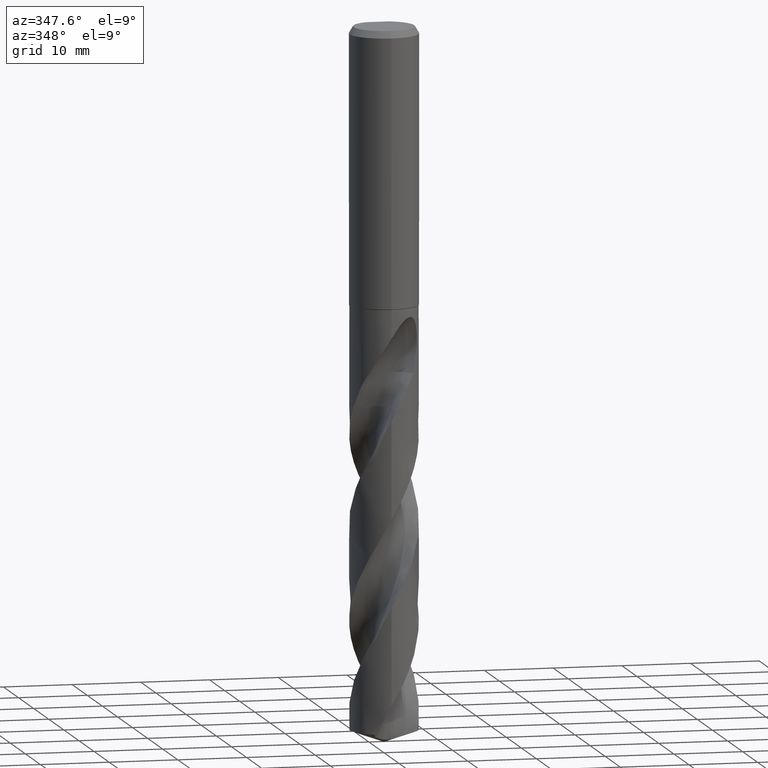
[diagram: clean part render]
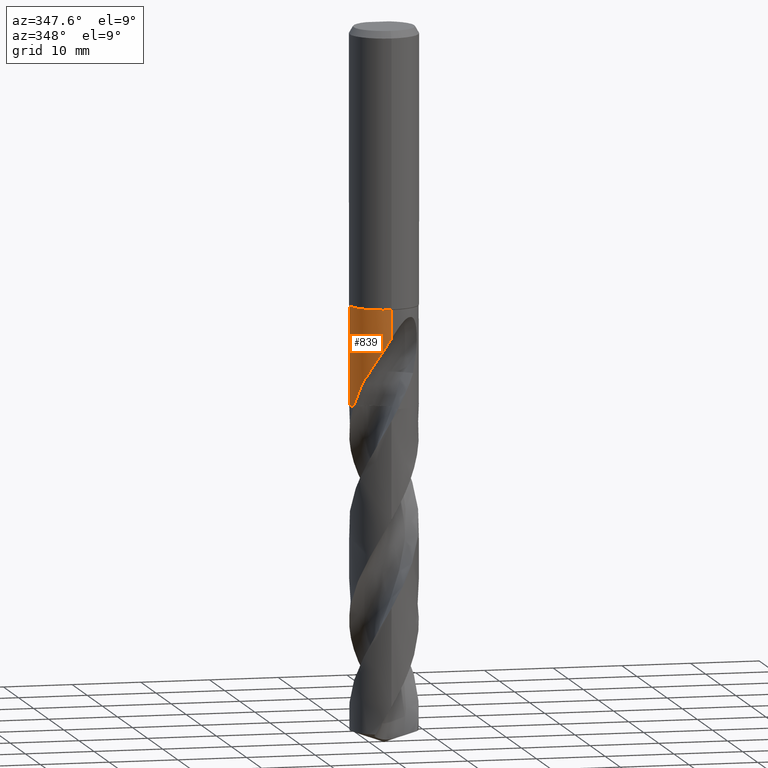
[diagram: same view with one face highlighted and labeled with its STEP entity id]
A machine part, auxiliary view. The second image highlights one B-rep face of the part: STEP entity #839.
In plain terms, the highlighted cylindrical surface (edge-blend (fillet) strip) has radius 4.95 mm, axis along (-0, -0, 1).
Its self-contained STEP definition (entity closure, byte-faithful):
#359=EDGE_CURVE('',#521,#843,#936,.T.);
#361=EDGE_CURVE('',#669,#521,#938,.T.);
#363=EDGE_CURVE('',#627,#669,#940,.T.);
#377=VERTEX_POINT('',#955);
#437=VERTEX_POINT('',#1017);
#497=EDGE_CURVE('',#437,#507,#1080,.T.);
#507=VERTEX_POINT('',#1092);
#521=VERTEX_POINT('',#1106);
#541=EDGE_CURVE('',#747,#843,#1128,.T.);
#627=VERTEX_POINT('',#1225);
#645=EDGE_CURVE('',#747,#377,#1246,.T.);
#651=VERTEX_POINT('',#1253);
#669=VERTEX_POINT('',#1272);
#681=EDGE_CURVE('',#377,#651,#1285,.T.);
#747=VERTEX_POINT('',#1357);
#753=EDGE_CURVE('',#507,#627,#1363,.T.);
#829=EDGE_CURVE('',#651,#437,#1448,.T.);
#839=ADVANCED_FACE('',(#1459),#1460,.T.);
#843=VERTEX_POINT('',#1464);
#936=B_SPLINE_CURVE_WITH_KNOTS('',3,(#2507,#2508,#2509,#2510,#2511,#2512,#2513,#2514,#2515,#2516),.UNSPECIFIED.,.F.,.F.,(4,2,2,2,4),(0.0,1.40330162949224,2.61879485327004,3.29349505720181,5.31288909154133),.UNSPECIFIED.);
#938=B_SPLINE_CURVE_WITH_KNOTS('',3,(#2519,#2520,#2521,#2522),.UNSPECIFIED.,.F.,.F.,(4,4),(0.0,2.84486350772969),.UNSPECIFIED.);
#940=B_SPLINE_CURVE_WITH_KNOTS('',3,(#2525,#2526,#2527,#2528,#2529,#2530,#2531,#2532,#2533,#2534,#2535,#2536,#2537,#2538,#2539,#2540,#2541,#2542,#2543,#2544,#2545,#2546,#2547,#2548,#2549,#2550,#2551,#2552,#2553,#2554),.UNSPECIFIED.,.F.,.F.,(4,2,2,2,2,2,2,2,2,2,2,2,2,2,4),(0.0,2.42522133658939,3.74944915145808,4.94886623933626,6.34230013498849,8.01613327898156,9.46687294784059,10.1242987846261,10.6047968681304,11.0594885630532,11.6362920786605,12.4801790119403,13.679863513429,14.4649272720571,15.2899759406894),.UNSPECIFIED.);
#955=CARTESIAN_POINT('',(-3.15421182156628,-3.814898135559,-49.4894));
#1017=CARTESIAN_POINT('',(6.06180145142077E-016,-4.95,-40.0866025403785));
#1080=CIRCLE('',#4504,4.95);
#1092=CARTESIAN_POINT('',(0.0,4.95,-40.0866025403784));
#1106=CARTESIAN_POINT('',(-3.44063284594782,3.55872809011661,-49.4894));
#1128=CIRCLE('',#4655,4.95);
#1225=CARTESIAN_POINT('',(-1.46402112573838E-012,4.95,-44.2276631421778));
#1246=B_SPLINE_CURVE_WITH_KNOTS('',3,(#6331,#6332,#6333,#6334,#6335,#6336,#6337,#6338,#6339,#6340,#6341,#6342),.UNSPECIFIED.,.F.,.F.,(4,2,2,2,2,4),(0.0,1.42459174307547,2.33315341626925,3.14287996455602,4.19952065614753,7.08593611022931),.UNSPECIFIED.);
#1253=CARTESIAN_POINT('',(1.4669077056024E-012,-4.95,-44.2276631421778));
#1272=CARTESIAN_POINT('',(-4.02752870835985,2.87776171760923,-46.7788778711761));
#1285=B_SPLINE_CURVE_WITH_KNOTS('',3,(#6545,#6546,#6547,#6548,#6549,#6550,#6551,#6552,#6553,#6554,#6555,#6556,#6557,#6558,#6559,#6560,#6561,#6562,#6563,#6564,#6565,#6566,#6567,#6568,#6569,#6570,#6571,#6572,#6573,#6574),.UNSPECIFIED.,.F.,.F.,(4,2,2,2,2,2,2,2,2,2,2,2,2,2,4),(0.0,2.42522133658941,3.74944915145817,4.94886623933625,6.34230013498769,8.01613327897986,9.46687294783818,10.1242987846232,10.6047968681272,11.0594885630496,11.6362920786569,12.4801790119349,13.679863513419,14.464927272044,15.2899759406732),.UNSPECIFIED.);
#1357=CARTESIAN_POINT('',(-4.75500296771918,-1.37566230484877,-54.4));
#1363=LINE('',#7467,#7468);
#1448=LINE('',#8948,#8949);
#1459=FACE_OUTER_BOUND('',#8972,.T.);
#1460=CYLINDRICAL_SURFACE('',#8973,4.95);
#1464=CARTESIAN_POINT('',(-0.969686742396266,4.85409184313821,-54.4));
#2507=CARTESIAN_POINT('',(-3.44063284594782,3.55872809011661,-49.4894));
#2508=CARTESIAN_POINT('',(-3.28096544860085,3.71309697636692,-49.9010828048087));
#2509=CARTESIAN_POINT('',(-3.11000561110032,3.85867884008809,-50.3018179626087));
#2510=CARTESIAN_POINT('',(-2.74343939788603,4.12557059020164,-51.0711468243199));
#2511=CARTESIAN_POINT('',(-2.56499005662913,4.23957045023099,-51.424640564952));
#2512=CARTESIAN_POINT('',(-2.25768657513231,4.40692089975931,-52.0300546925235));
#2513=CARTESIAN_POINT('',(-2.14595393397147,4.46238602922515,-52.2472018037267));
#2514=CARTESIAN_POINT('',(-1.69255483101319,4.66654862672615,-53.1121758678117));
#2515=CARTESIAN_POINT('',(-1.33628747464521,4.78085716169783,-53.753075630111));
#2516=CARTESIAN_POINT('',(-0.969686742396252,4.85409184313821,-54.4));
#2519=CARTESIAN_POINT('',(-4.02752870841248,2.8777617175356,-46.778877871205));
#2520=CARTESIAN_POINT('',(-3.86794478837606,3.10110502474244,-47.6865675534899));
#2521=CARTESIAN_POINT('',(-3.67560350998939,3.33155485179564,-48.5996588595722));
#2522=CARTESIAN_POINT('',(-3.44063284594782,3.55872809011661,-49.4894));
#2525=CARTESIAN_POINT('',(3.15421182156628,3.814898135559,-49.4894));
#2526=CARTESIAN_POINT('',(2.8276920014912,4.0848693483829,-48.8009071457202));
#2527=CARTESIAN_POINT('',(2.45226826174791,4.32485498631928,-48.1590095711176));
#2528=CARTESIAN_POINT('',(1.79764121999742,4.61900775837611,-47.0866758738501));
#2529=CARTESIAN_POINT('',(1.56207562164077,4.70362440821448,-46.7093927774656));
#2530=CARTESIAN_POINT('',(1.10605040886256,4.83008689745465,-45.9790706206081));
#2531=CARTESIAN_POINT('',(0.88762692870435,4.87476579277415,-45.6294356806956));
#2532=CARTESIAN_POINT('',(0.414832128174307,4.93924843670553,-44.8758796771763));
#2533=CARTESIAN_POINT('',(0.156511543951818,4.95438716355786,-44.466060145349));
#2534=CARTESIAN_POINT('',(-0.417152449289362,4.94232025588948,-43.5893208093688));
#2535=CARTESIAN_POINT('',(-0.757277279494261,4.90499779900941,-43.0904465141897));
#2536=CARTESIAN_POINT('',(-1.4131639952485,4.75427202570061,-42.2678372951499));
#2537=CARTESIAN_POINT('',(-1.77603978824769,4.63943807536159,-41.8664362968636));
#2538=CARTESIAN_POINT('',(-2.32524882669984,4.37400306711188,-41.4905645527586));
#2539=CARTESIAN_POINT('',(-2.50704073035636,4.27379520392938,-41.3976715698567));
#2540=CARTESIAN_POINT('',(-2.82558192301699,4.06746476166216,-41.3263131692527));
#2541=CARTESIAN_POINT('',(-2.95623354614982,3.97350033673387,-41.3249807759573));
#2542=CARTESIAN_POINT('',(-3.19957924470425,3.77995324861208,-41.3874344103382));
#2543=CARTESIAN_POINT('',(-3.30600650805881,3.68647387505575,-41.44599019723));
#2544=CARTESIAN_POINT('',(-3.52258480556177,3.48162114113016,-41.6292044823405));
#2545=CARTESIAN_POINT('',(-3.62278372576779,3.37546132126469,-41.764475253049));
#2546=CARTESIAN_POINT('',(-3.82802350911612,3.14365360319621,-42.13488860782));
#2547=CARTESIAN_POINT('',(-3.92612403652545,3.01741773297469,-42.4096258446895));
#2548=CARTESIAN_POINT('',(-4.11059843951547,2.7639377374244,-43.1783100962963));
#2549=CARTESIAN_POINT('',(-4.17729019333258,2.65596749160686,-43.7257567379805));
#2550=CARTESIAN_POINT('',(-4.2102998452658,2.6031676615563,-44.7389455615612));
#2551=CARTESIAN_POINT('',(-4.20253832842326,2.61603697361332,-45.1424473151637));
#2552=CARTESIAN_POINT('',(-4.14771777353582,2.70216097818474,-45.9613542996283));
#2553=CARTESIAN_POINT('',(-4.0987695208509,2.77805769564006,-46.3736772670153));
#2554=CARTESIAN_POINT('',(-4.02752870835986,2.87776171760923,-46.7788778711761));
#4504=AXIS2_PLACEMENT_3D('',#9221,#9222,#9223);
#4655=AXIS2_PLACEMENT_3D('',#9274,#9275,#9276);
#6331=CARTESIAN_POINT('',(-4.75500296771916,-1.37566230484877,-54.4));
#6332=CARTESIAN_POINT('',(-4.68928512230331,-1.6028172896754,-53.9882020946846));
#6333=CARTESIAN_POINT('',(-4.6068064350498,-1.82698954742417,-53.5775831189727));
#6334=CARTESIAN_POINT('',(-4.44366673486416,-2.18630747769313,-52.9073221895357));
#6335=CARTESIAN_POINT('',(-4.37468000379992,-2.32134009471706,-52.6543381050001));
#6336=CARTESIAN_POINT('',(-4.22949615202779,-2.57543803306096,-52.1473775873078));
#6337=CARTESIAN_POINT('',(-4.15780773615866,-2.6892921831937,-51.9081814290216));
#6338=CARTESIAN_POINT('',(-3.98718772071158,-2.93837557681168,-51.3485116499051));
#6339=CARTESIAN_POINT('',(-3.91376635414314,-3.03245033836133,-51.1039107058727));
#6340=CARTESIAN_POINT('',(-3.6696023960462,-3.33425770307823,-50.3978574781839));
#6341=CARTESIAN_POINT('',(-3.44654222391875,-3.57319521764654,-49.9345664456576));
#6342=CARTESIAN_POINT('',(-3.15421182156628,-3.814898135559,-49.4894));
#6545=CARTESIAN_POINT('',(-3.15421182156628,-3.814898135559,-49.4894));
#6546=CARTESIAN_POINT('',(-2.8276920014912,-4.08486934838291,-48.8009071457202));
#6547=CARTESIAN_POINT('',(-2.45226826174789,-4.32485498631929,-48.1590095711175));
#6548=CARTESIAN_POINT('',(-1.79764121999742,-4.6190077583761,-47.0866758738501));
#6549=CARTESIAN_POINT('',(-1.56207562164077,-4.70362440821447,-46.7093927774656));
#6550=CARTESIAN_POINT('',(-1.10605040886259,-4.83008689745463,-45.9790706206081));
#6551=CARTESIAN_POINT('',(-0.887626928704416,-4.87476579277414,-45.6294356806957));
#6552=CARTESIAN_POINT('',(-0.41483212817435,-4.93924843670552,-44.8758796771764));
#6553=CARTESIAN_POINT('',(-0.156511543951844,-4.95438716355787,-44.466060145349));
#6554=CARTESIAN_POINT('',(0.417152449289396,-4.94232025588948,-43.5893208093687));
#6555=CARTESIAN_POINT('',(0.757277279494271,-4.9049977990094,-43.0904465141897));
#6556=CARTESIAN_POINT('',(1.4131639952485,-4.75427202570061,-42.2678372951499));
#6557=CARTESIAN_POINT('',(1.77603978824769,-4.63943807536159,-41.8664362968636));
#6558=CARTESIAN_POINT('',(2.3252488266998,-4.37400306711189,-41.4905645527586));
#6559=CARTESIAN_POINT('',(2.50704073035634,-4.27379520392939,-41.3976715698567));
#6560=CARTESIAN_POINT('',(2.82558192301699,-4.06746476166217,-41.3263131692527));
#6561=CARTESIAN_POINT('',(2.95623354614982,-3.97350033673387,-41.3249807759573));
#6562=CARTESIAN_POINT('',(3.19957924470427,-3.77995324861207,-41.3874344103382));
#6563=CARTESIAN_POINT('',(3.30600650805883,-3.68647387505572,-41.4459901972301));
#6564=CARTESIAN_POINT('',(3.52258480556177,-3.48162114113016,-41.6292044823405));
#6565=CARTESIAN_POINT('',(3.62278372576778,-3.37546132126469,-41.764475253049));
#6566=CARTESIAN_POINT('',(3.8280235091159,-3.14365360319645,-42.1348886078196));
#6567=CARTESIAN_POINT('',(3.92612403652531,-3.01741773297489,-42.4096258446889));
#6568=CARTESIAN_POINT('',(4.11059843951547,-2.7639377374244,-43.1783100962963));
#6569=CARTESIAN_POINT('',(4.17729019333258,-2.65596749160686,-43.7257567379805));
#6570=CARTESIAN_POINT('',(4.21029984526579,-2.60316766155629,-44.7389455615612));
#6571=CARTESIAN_POINT('',(4.20253832842326,-2.61603697361332,-45.1424473151637));
#6572=CARTESIAN_POINT('',(4.14771777353582,-2.70216097818474,-45.9613542996283));
#6573=CARTESIAN_POINT('',(4.0987695208509,-2.77805769564006,-46.3736772670153));
#6574=CARTESIAN_POINT('',(4.02752870835986,-2.87776171760923,-46.7788778711761));
#7467=CARTESIAN_POINT('',(-6.06180145142077E-016,4.95,-47.2433012701892));
#7468=VECTOR('',#9516,1.0);
#8948=CARTESIAN_POINT('',(6.06180145142077E-016,-4.95,-47.2433012701892));
#8949=VECTOR('',#9602,1.0);
#8972=EDGE_LOOP('',(#9615,#9616,#9617,#9618,#9619,#9620,#9621,#9622,#9623));
#8973=AXIS2_PLACEMENT_3D('',#9624,#9625,#9626);
#9221=CARTESIAN_POINT('',(0.0,0.0,-40.0866025403784));
#9222=DIRECTION('',(0.0,0.0,-1.0));
#9223=DIRECTION('',(0.0,1.0,0.0));
#9274=CARTESIAN_POINT('',(0.0,0.0,-54.4));
#9275=DIRECTION('',(0.0,0.0,-1.0));
#9276=DIRECTION('',(0.0,1.0,0.0));
#9516=DIRECTION('',(0.0,0.0,-1.0));
#9602=DIRECTION('',(-0.0,-0.0,1.0));
#9615=ORIENTED_EDGE('',*,*,#753,.T.);
#9616=ORIENTED_EDGE('',*,*,#363,.T.);
#9617=ORIENTED_EDGE('',*,*,#361,.T.);
#9618=ORIENTED_EDGE('',*,*,#359,.T.);
#9619=ORIENTED_EDGE('',*,*,#541,.F.);
#9620=ORIENTED_EDGE('',*,*,#645,.T.);
#9621=ORIENTED_EDGE('',*,*,#681,.T.);
#9622=ORIENTED_EDGE('',*,*,#829,.T.);
#9623=ORIENTED_EDGE('',*,*,#497,.T.);
#9624=CARTESIAN_POINT('',(0.0,0.0,-47.2433012701892));
#9625=DIRECTION('',(-0.0,-0.0,1.0));
#9626=DIRECTION('',(0.0,1.0,0.0));